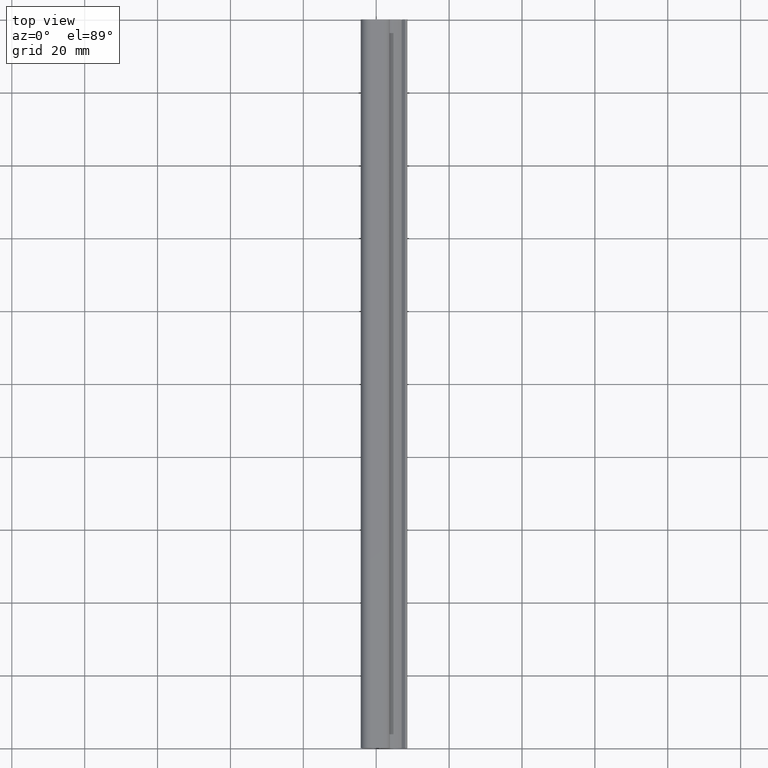
[diagram: clean part render]
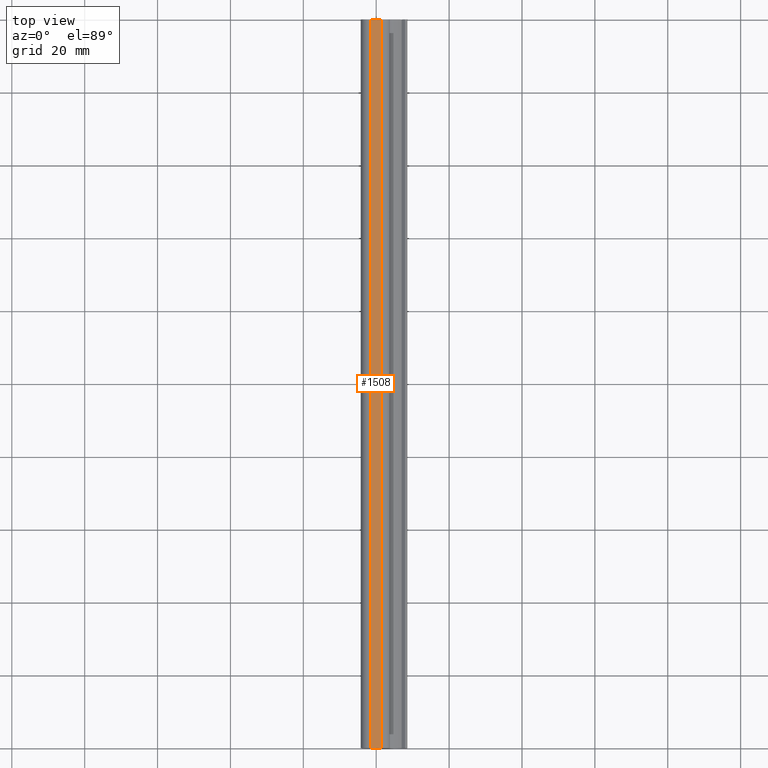
[diagram: same view with one face highlighted and labeled with its STEP entity id]
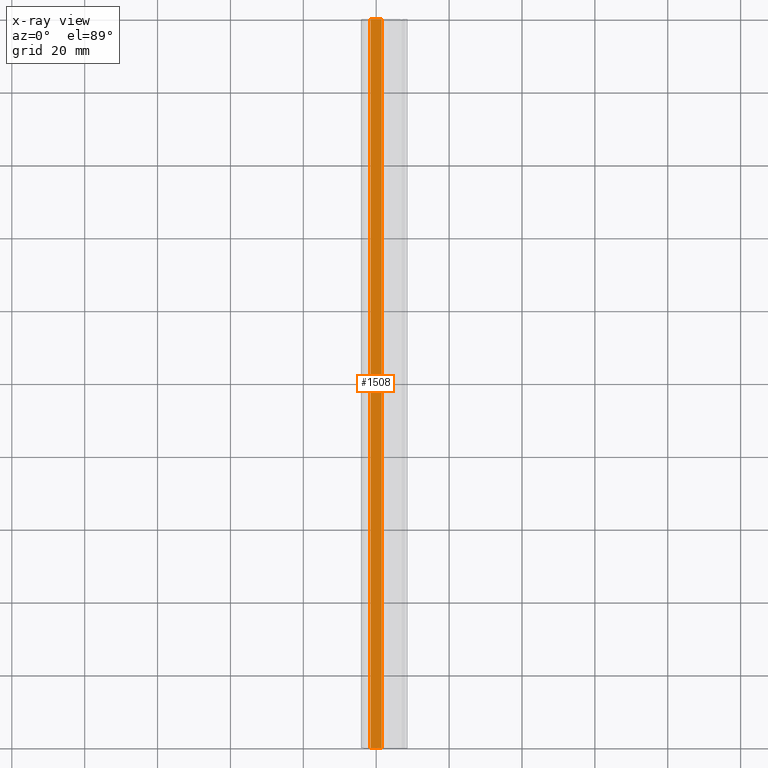
[diagram: x-ray of the same camera — body ghosted, the highlighted face saturated]
A machine part, top view. The second image highlights one B-rep face of the part: STEP entity #1508.
The next image is the same camera in x-ray: the body ghosted, the highlighted face saturated — about 0% of this face is hidden behind the body in this view.
In plain terms, the highlighted face is a freeform B-spline surface patch.
Its self-contained STEP definition (entity closure, byte-faithful):
#933=CARTESIAN_POINT('',(1.531029556071245,0.0,-8.082424E-014));
#934=VERTEX_POINT('',#933);
#950=CARTESIAN_POINT('',(-1.531029556080800,0.0,0.0));
#951=VERTEX_POINT('',#950);
#952=CARTESIAN_POINT('',(1.531029556071245,0.0,-8.082424E-014));
#953=CARTESIAN_POINT('',(-1.531029556080800,0.0,0.0));
#954=QUASI_UNIFORM_CURVE('',1,(#952,#953),.UNSPECIFIED.,.F.,.U.);
#955=EDGE_CURVE('',#934,#951,#954,.T.);
#1141=CARTESIAN_POINT('',(-1.531029556080800,200.0,0.0));
#1142=VERTEX_POINT('',#1141);
#1158=CARTESIAN_POINT('',(1.531029556071245,200.0,-8.082424E-014));
#1159=VERTEX_POINT('',#1158);
#1160=CARTESIAN_POINT('',(1.531029556071245,200.0,-8.082424E-014));
#1161=CARTESIAN_POINT('',(-1.531029556080800,200.0,0.0));
#1162=QUASI_UNIFORM_CURVE('',1,(#1160,#1161),.UNSPECIFIED.,.F.,.U.);
#1163=EDGE_CURVE('',#1159,#1142,#1162,.T.);
#1483=CARTESIAN_POINT('',(-1.531029556080800,200.0,0.0));
#1484=CARTESIAN_POINT('',(-1.531029556080800,0.0,0.0));
#1485=QUASI_UNIFORM_CURVE('',1,(#1483,#1484),.UNSPECIFIED.,.F.,.U.);
#1486=EDGE_CURVE('',#1142,#951,#1485,.T.);
#1493=CARTESIAN_POINT('',(-1.683979431542350,-9.989999612361194,0.0));
#1494=CARTESIAN_POINT('',(1.683979486286679,-9.989999612361194,0.0));
#1495=CARTESIAN_POINT('',(-1.683979431542350,209.990004976779200,0.0));
#1496=CARTESIAN_POINT('',(1.683979486286679,209.990004976779200,0.0));
#1497=B_SPLINE_SURFACE_WITH_KNOTS('',1,1,((#1493,#1495),(#1494,#1496)),.UNSPECIFIED.,.F.,.F.,.U.,(2,2),(2,2),(0.0,3.367958917829030),(0.0,219.980004589140410),.UNSPECIFIED.);
#1498=ORIENTED_EDGE('',*,*,#955,.F.);
#1499=CARTESIAN_POINT('',(1.531029556071245,200.0,-8.082424E-014));
#1500=CARTESIAN_POINT('',(1.531029556071245,0.0,-8.082424E-014));
#1501=QUASI_UNIFORM_CURVE('',1,(#1499,#1500),.UNSPECIFIED.,.F.,.U.);
#1502=EDGE_CURVE('',#1159,#934,#1501,.T.);
#1503=ORIENTED_EDGE('',*,*,#1502,.F.);
#1504=ORIENTED_EDGE('',*,*,#1163,.T.);
#1505=ORIENTED_EDGE('',*,*,#1486,.T.);
#1506=EDGE_LOOP('',(#1498,#1503,#1504,#1505));
#1507=FACE_OUTER_BOUND('',#1506,.T.);
#1508=ADVANCED_FACE('',(#1507),#1497,.T.);